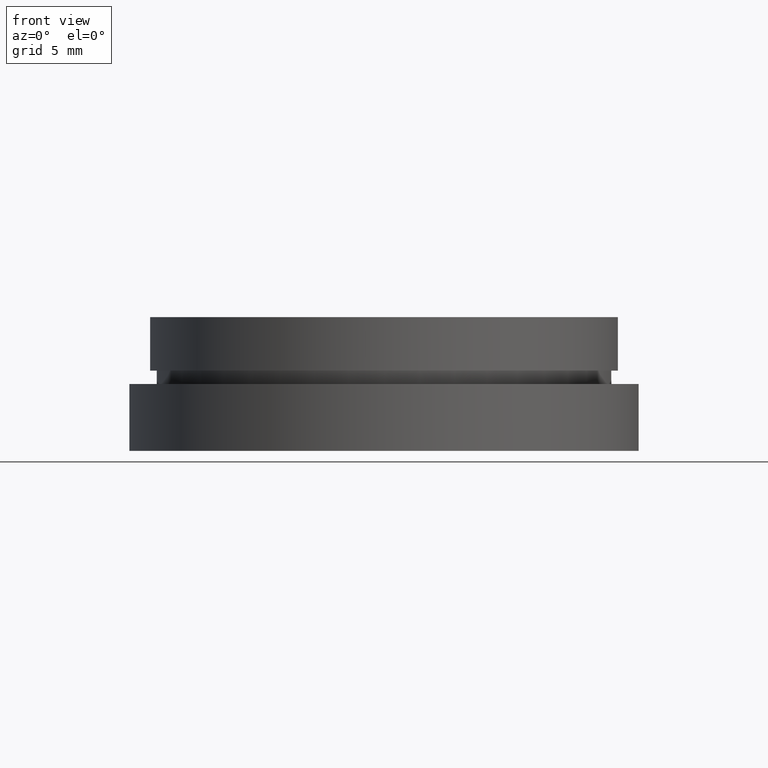
[diagram: clean part render]
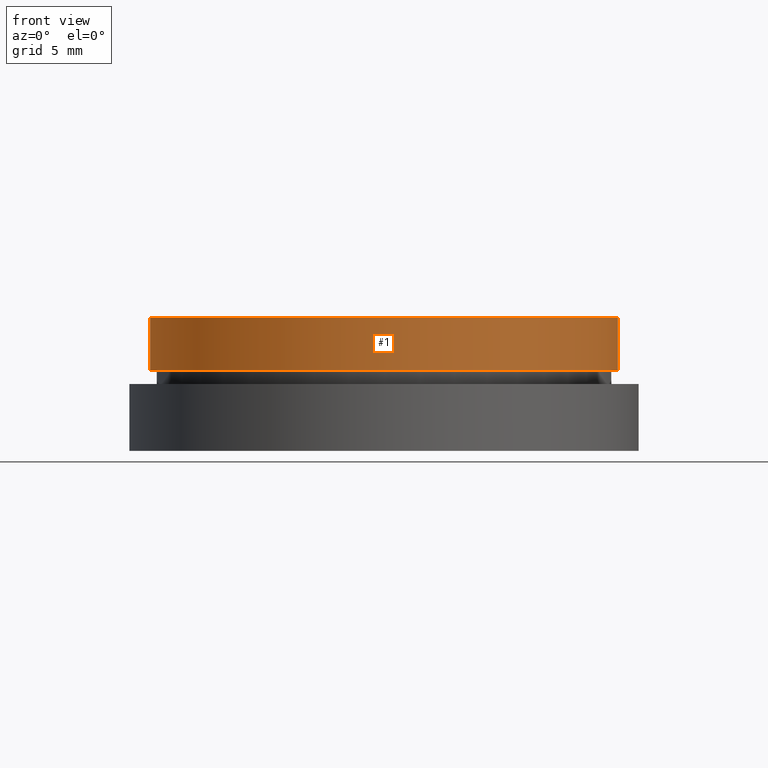
[diagram: same view with one face highlighted and labeled with its STEP entity id]
A machine part, front view. The second image highlights one B-rep face of the part: STEP entity #1.
In plain terms, the highlighted cylindrical surface (partial cylindrical patch) has radius 17.5 mm, axis along (-0, -0, -1).
Its self-contained STEP definition (entity closure, byte-faithful):
#1 = ADVANCED_FACE ( 'NONE', ( #116 ), #391, .T. ) ;
#11 = DIRECTION ( 'NONE',  ( -0.0000000000000000000, -0.0000000000000000000, -1.000000000000000000 ) ) ;
#35 = CARTESIAN_POINT ( 'NONE',  ( 0.0000000000000000000, 0.0000000000000000000, -4.000000000000000000 ) ) ;
#43 = ORIENTED_EDGE ( 'NONE', *, *, #321, .T. ) ;
#47 = AXIS2_PLACEMENT_3D ( 'NONE', #203, #123, #57 ) ;
#48 = CARTESIAN_POINT ( 'NONE',  ( -17.50000000000000400, 0.0000000000000000000, -4.000000000000000000 ) ) ;
#51 = ORIENTED_EDGE ( 'NONE', *, *, #316, .F. ) ;
#57 = DIRECTION ( 'NONE',  ( -1.000000000000000000, 0.0000000000000000000, 0.0000000000000000000 ) ) ;
#90 = ORIENTED_EDGE ( 'NONE', *, *, #149, .T. ) ;
#97 = VERTEX_POINT ( 'NONE', #120 ) ;
#107 = DIRECTION ( 'NONE',  ( -1.000000000000000000, 0.0000000000000000000, 0.0000000000000000000 ) ) ;
#113 = VERTEX_POINT ( 'NONE', #48 ) ;
#116 = FACE_OUTER_BOUND ( 'NONE', #361, .T. ) ;
#120 = CARTESIAN_POINT ( 'NONE',  ( -17.50000000000000400, 0.0000000000000000000, 0.0000000000000000000 ) ) ;
#123 = DIRECTION ( 'NONE',  ( -0.0000000000000000000, -0.0000000000000000000, -1.000000000000000000 ) ) ;
#128 = CARTESIAN_POINT ( 'NONE',  ( 17.50000000000000400, 2.143131898507868600E-015, -4.000000000000000000 ) ) ;
#149 = EDGE_CURVE ( 'NONE', #97, #113, #206, .T. ) ;
#150 = VERTEX_POINT ( 'NONE', #433 ) ;
#157 = AXIS2_PLACEMENT_3D ( 'NONE', #35, #11, #107 ) ;
#173 = VECTOR ( 'NONE', #350, 1000.000000000000000 ) ;
#175 = CARTESIAN_POINT ( 'NONE',  ( -17.50000000000000400, 0.0000000000000000000, -19.14057971014493000 ) ) ;
#189 = CARTESIAN_POINT ( 'NONE',  ( 17.50000000000000400, 2.143131898507868600E-015, -19.14057971014493000 ) ) ;
#198 = DIRECTION ( 'NONE',  ( -0.0000000000000000000, -0.0000000000000000000, -1.000000000000000000 ) ) ;
#203 = CARTESIAN_POINT ( 'NONE',  ( 0.0000000000000000000, 0.0000000000000000000, -19.14057971014493000 ) ) ;
#206 = LINE ( 'NONE', #175, #173 ) ;
#220 = DIRECTION ( 'NONE',  ( -1.000000000000000000, 0.0000000000000000000, 0.0000000000000000000 ) ) ;
#224 = ORIENTED_EDGE ( 'NONE', *, *, #245, .F. ) ;
#243 = LINE ( 'NONE', #189, #324 ) ;
#245 = EDGE_CURVE ( 'NONE', #150, #251, #243, .T. ) ;
#251 = VERTEX_POINT ( 'NONE', #128 ) ;
#266 = DIRECTION ( 'NONE',  ( -0.0000000000000000000, -0.0000000000000000000, -1.000000000000000000 ) ) ;
#274 = AXIS2_PLACEMENT_3D ( 'NONE', #426, #198, #220 ) ;
#277 = CIRCLE ( 'NONE', #274, 17.50000000000000400 ) ;
#316 = EDGE_CURVE ( 'NONE', #251, #113, #334, .T. ) ;
#321 = EDGE_CURVE ( 'NONE', #150, #97, #277, .T. ) ;
#324 = VECTOR ( 'NONE', #266, 1000.000000000000000 ) ;
#334 = CIRCLE ( 'NONE', #157, 17.50000000000000400 ) ;
#350 = DIRECTION ( 'NONE',  ( -0.0000000000000000000, -0.0000000000000000000, -1.000000000000000000 ) ) ;
#361 = EDGE_LOOP ( 'NONE', ( #224, #43, #90, #51 ) ) ;
#391 = CYLINDRICAL_SURFACE ( 'NONE', #47, 17.50000000000000400 ) ;
#426 = CARTESIAN_POINT ( 'NONE',  ( 0.0000000000000000000, 0.0000000000000000000, 0.0000000000000000000 ) ) ;
#433 = CARTESIAN_POINT ( 'NONE',  ( 17.50000000000000400, 2.143131898507868600E-015, 0.0000000000000000000 ) ) ;